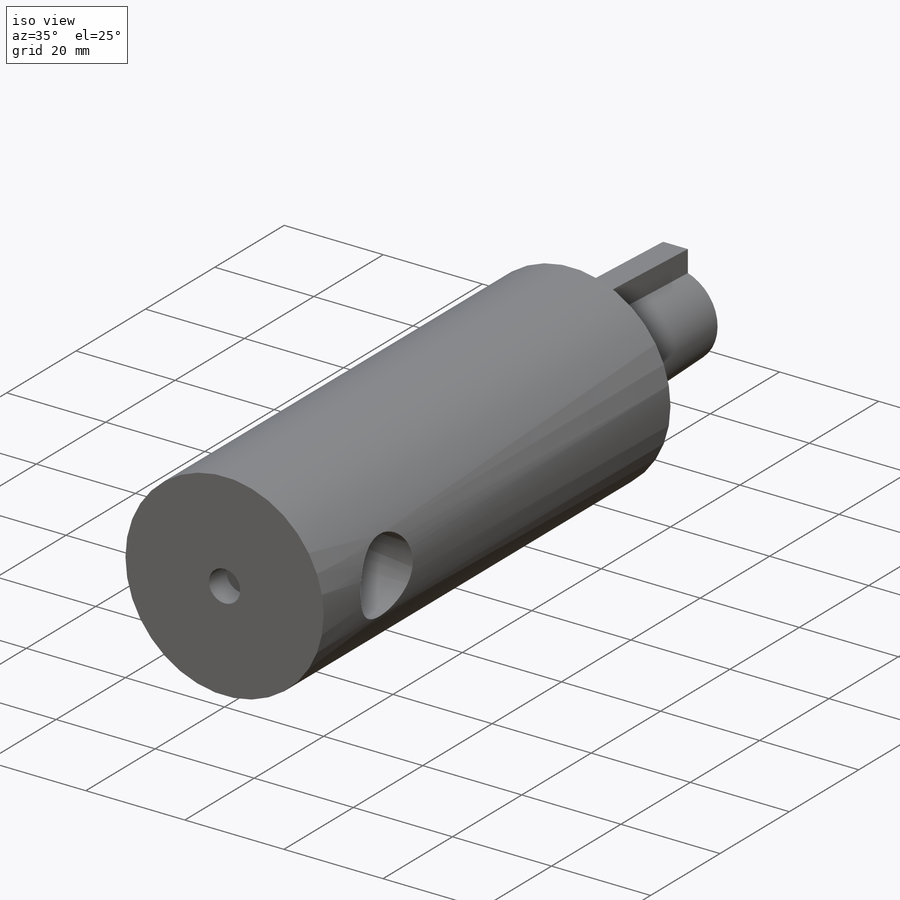
[diagram: iso view]
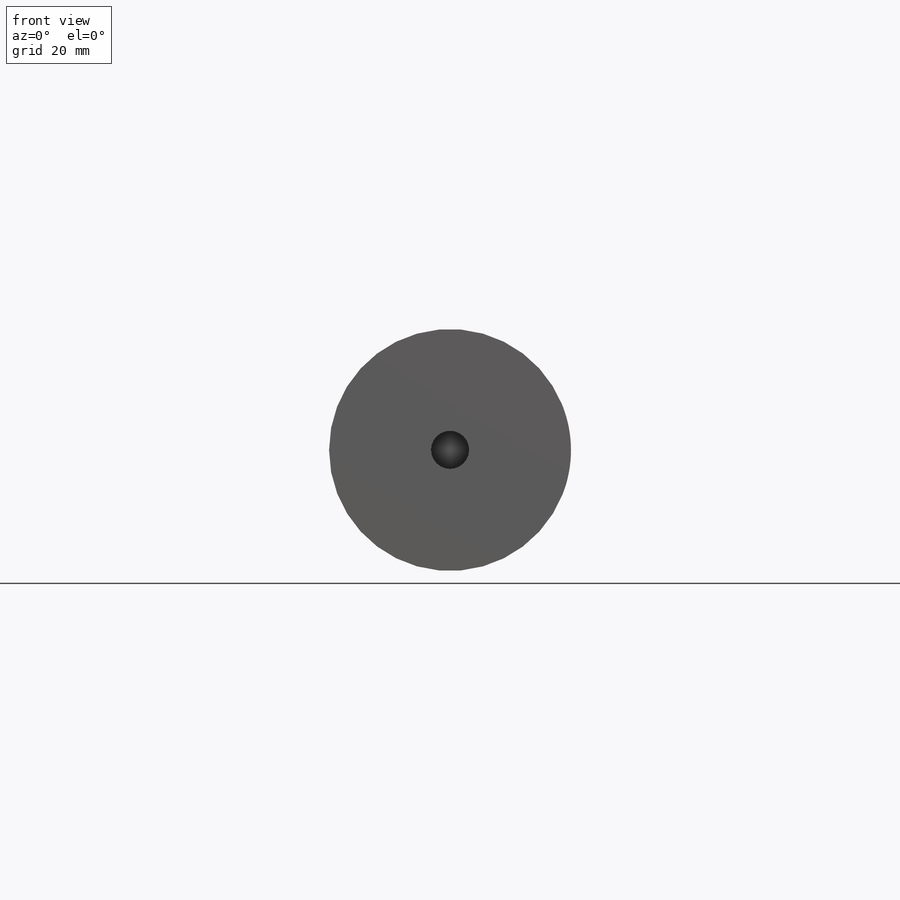
[diagram: front view]
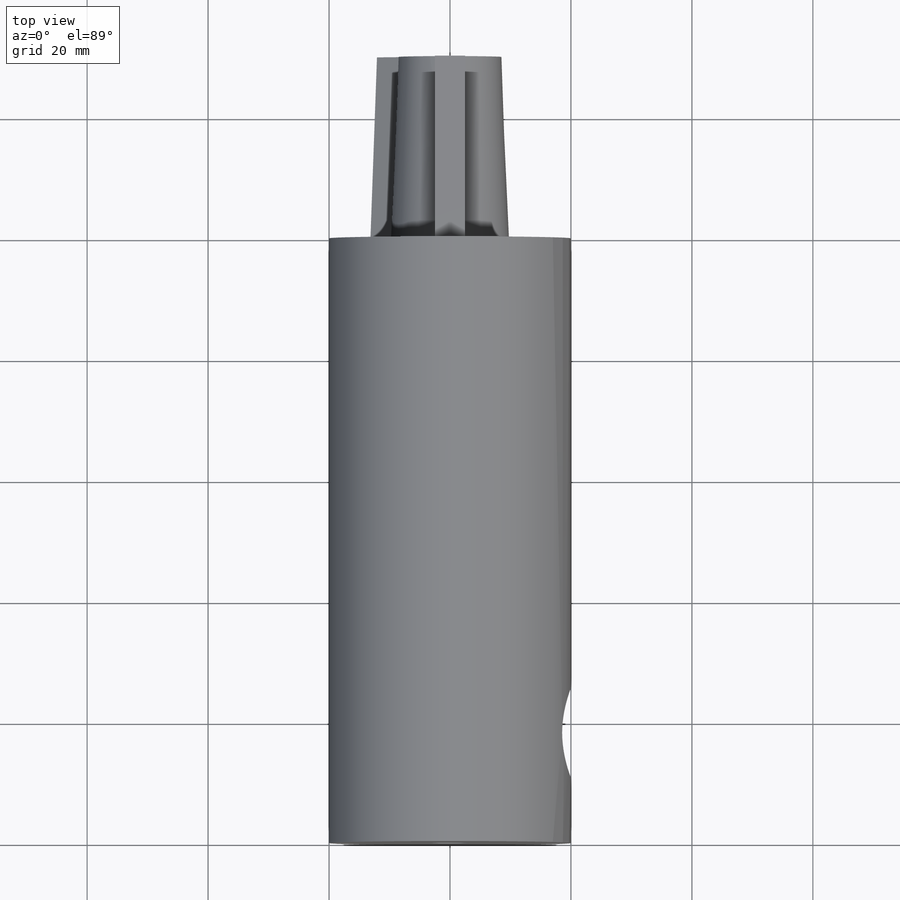
[diagram: top view]
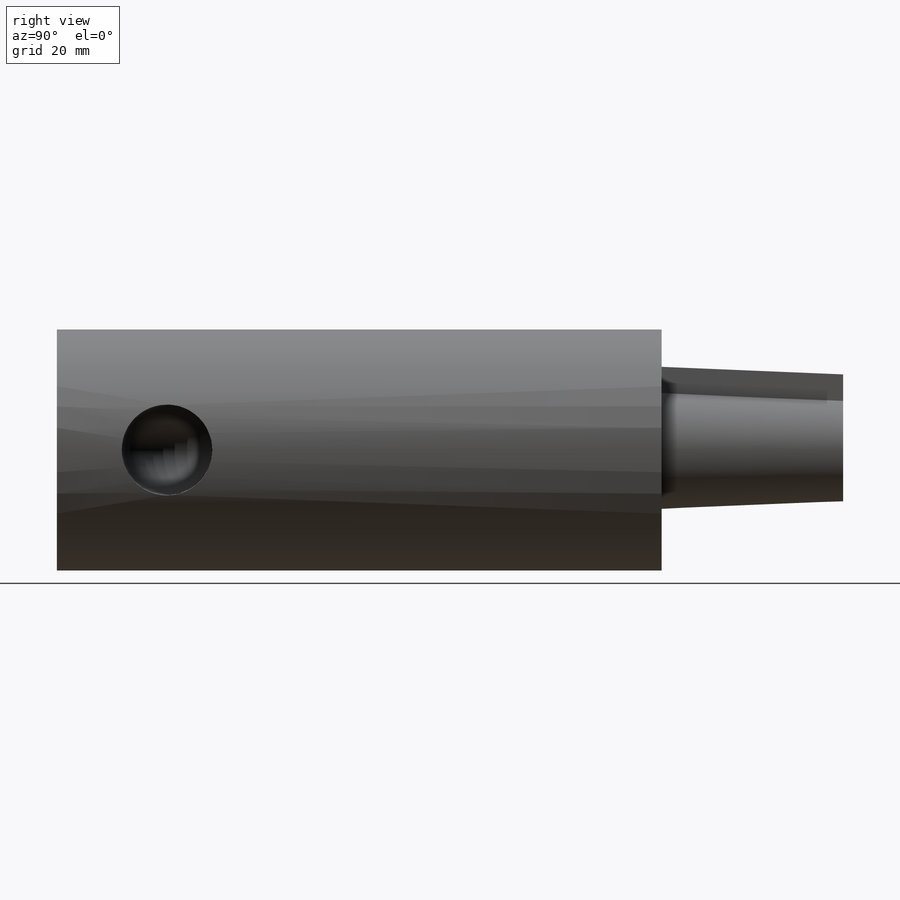
[diagram: right view]
SOLIDWORKS PART (.sldprt)
format: sldprt  version: not decoded by parser v0  size: 275,968 bytes
history: native  units: mm
features: sketch x10, cut_extrude x2, sweep x2, material x1, extrude x1, plane x1, pattern_circular x1 (+13 scaffold rows collapsed)
feature tree (31):
  scaffold x13  (default folders/planes/origin — collapsed)
  material  "Material <not specified>"
  sketch  "Sketch1"  dims[D1=40.0mm]
  extrude  "Boss-Extrude1"  Depth=100mm
  sketch  "Sketch2"  dims[D1=15.0mm]
  sketch  "Sketch3"  dims[D1=6.3mm]
  cut_extrude  "Cut-Extrude2"  Depth=5mm
  sketch  "Sketch4"  dims[D1=10.0mm]
  sweep  "Cut-Sweep1"
  sketch  "Sketch5"  dims[D1=19.5mm]
  plane  "Plane1"  Offset=30mm
  sketch  "Sketch6"  dims[D1=17.0mm]
  sketch  "Sketch7"  dims[D1=8.0mm]
  cut_extrude  "Cut-Extrude3"  Depth=30mm
  sketch  "Sketch8"  dims[c1.D1=~24.494425mm c2.D1=120.0deg]
  sketch  "Sketch9"  dims[c1.D1=2.5mm c1.D2=5.0mm c1.D3=~15.500656mm c2.D3=90.0deg c3.D3=4.0mm]
  sketch  "Sketch12"  dims[D1=4.0mm D2=2.5mm D3=5.0mm]
  sweep  "Loft2"
  pattern_circular  "CirPattern1"  Count=2 Angle=240deg
decode coverage: 14 of 16 modeling features carry decoded parameters
note: ~ marks probable driven/reference dimensions
note: suppression state not decoded; provenance and decode notes live in map.json
